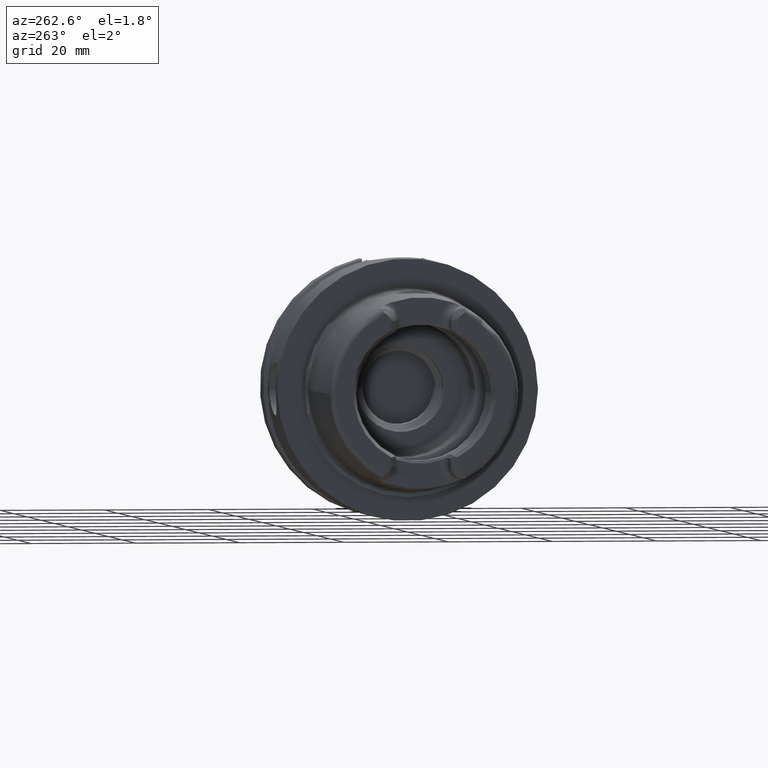
[diagram: clean part render]
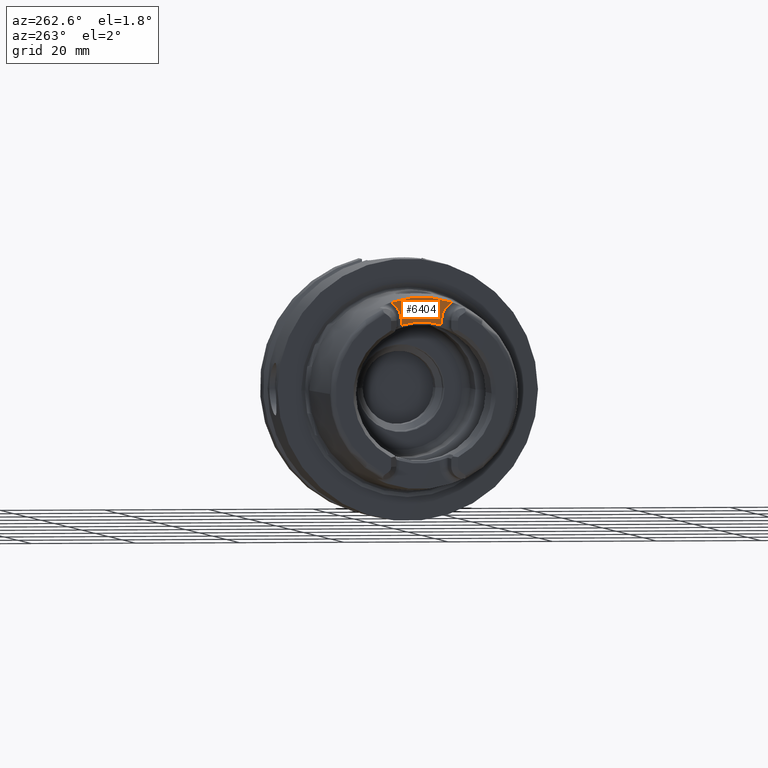
[diagram: same view with one face highlighted and labeled with its STEP entity id]
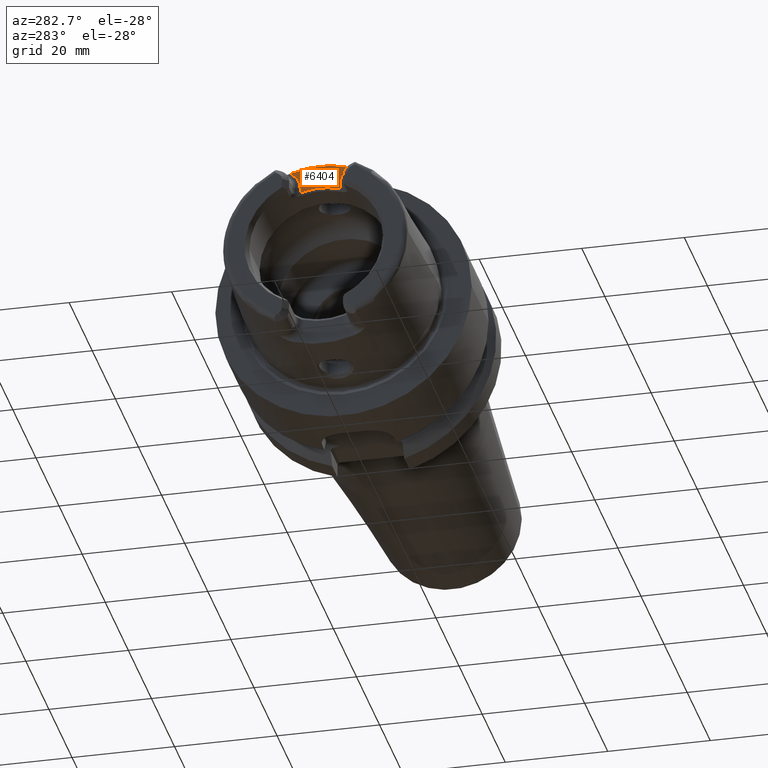
[diagram: same view with one face highlighted and labeled with its STEP entity id]
A machine part, auxiliary view. The second image highlights one B-rep face of the part: STEP entity #6404.
A second angle (auxiliary view) of the same face is appended — the face is thin or edge-on in the first view.
In plain terms, the highlighted planar face has unit normal (-1, 0, 0).
Its self-contained STEP definition (entity closure, byte-faithful):
#8=CARTESIAN_POINT('',(-2.03E1,0.E0,0.E0));
#9=DIRECTION('',(1.E0,0.E0,0.E0));
#10=DIRECTION('',(0.E0,3.252089046527E-1,9.456421988969E-1));
#11=AXIS2_PLACEMENT_3D('',#8,#9,#10);
#2606=DIRECTION('',(0.E0,1.605967836501E-11,1.E0));
#2607=VECTOR('',#2606,9.474000707151E-1);
#2608=CARTESIAN_POINT('',(-2.03E1,3.869999999992E0,1.293259992922E1));
#2609=LINE('',#2608,#2607);
#2610=CARTESIAN_POINT('',(-2.03E1,7.65E0,1.388E1));
#2611=DIRECTION('',(-1.E0,0.E0,0.E0));
#2612=DIRECTION('',(0.E0,-1.E0,0.E0));
#2613=AXIS2_PLACEMENT_3D('',#2610,#2611,#2612);
#2615=CARTESIAN_POINT('',(-2.03E1,-7.65E0,1.388E1));
#2616=DIRECTION('',(-1.E0,0.E0,0.E0));
#2617=DIRECTION('',(0.E0,4.547221569343E-1,8.906333476762E-1));
#2618=AXIS2_PLACEMENT_3D('',#2615,#2616,#2617);
#2620=DIRECTION('',(0.E0,2.687081703110E-11,-1.E0));
#2621=VECTOR('',#2620,9.474000706860E-1);
#2622=CARTESIAN_POINT('',(-2.03E1,-3.870000000016E0,1.387999999991E1));
#2623=LINE('',#2622,#2621);
#2624=CARTESIAN_POINT('',(-2.03E1,3.869999999992E0,1.293259992922E1));
#2625=CARTESIAN_POINT('',(-2.03E1,3.367341739340E0,1.308906659587E1));
#2626=CARTESIAN_POINT('',(-2.03E1,2.351605461968E0,1.333894307947E1));
#2627=CARTESIAN_POINT('',(-2.03E1,7.869237642455E-1,1.352896153447E1));
#2628=CARTESIAN_POINT('',(-2.03E1,-7.869237642206E-1,1.352896153447E1));
#2629=CARTESIAN_POINT('',(-2.03E1,-2.351605461924E0,1.333894307948E1));
#2630=CARTESIAN_POINT('',(-2.03E1,-3.367341739321E0,1.308906659588E1));
#2631=CARTESIAN_POINT('',(-2.03E1,-3.869999999991E0,1.293259992922E1));
#2782=CARTESIAN_POINT('',(-2.03E1,3.87E0,1.388E1));
#2784=VERTEX_POINT('',#2782);
#2786=CARTESIAN_POINT('',(-2.03E1,-3.87E0,1.388E1));
#2788=VERTEX_POINT('',#2786);
#2790=CARTESIAN_POINT('',(-2.03E1,5.931150246788E0,1.724659405422E1));
#2791=VERTEX_POINT('',#2790);
#2796=CARTESIAN_POINT('',(-2.03E1,-5.931150246788E0,1.724659405422E1));
#2797=VERTEX_POINT('',#2796);
#2829=CARTESIAN_POINT('',(-2.03E1,3.869999999992E0,1.293259992922E1));
#2830=VERTEX_POINT('',#2829);
#2831=CARTESIAN_POINT('',(-2.03E1,-3.869999999991E0,1.293259992922E1));
#2832=VERTEX_POINT('',#2831);
#6389=CARTESIAN_POINT('',(-2.03E1,0.E0,0.E0));
#6390=DIRECTION('',(-1.E0,0.E0,0.E0));
#6391=DIRECTION('',(0.E0,0.E0,1.E0));
#6392=AXIS2_PLACEMENT_3D('',#6389,#6390,#6391);
#6393=PLANE('',#6392);
#6394=ORIENTED_EDGE('',*,*,#3469,.T.);
#6395=ORIENTED_EDGE('',*,*,#3487,.T.);
#6396=ORIENTED_EDGE('',*,*,#3249,.T.);
#6398=ORIENTED_EDGE('',*,*,#6397,.T.);
#6400=ORIENTED_EDGE('',*,*,#6399,.T.);
#6401=ORIENTED_EDGE('',*,*,#6380,.F.);
#6402=EDGE_LOOP('',(#6394,#6395,#6396,#6398,#6400,#6401));
#6403=FACE_OUTER_BOUND('',#6402,.F.);
#6404=ADVANCED_FACE('',(#6403),#6393,.T.);
#12=CIRCLE('',#11,1.823797E1);
#2614=CIRCLE('',#2613,3.78E0);
#2619=CIRCLE('',#2618,3.78E0);
#2632=B_SPLINE_CURVE_WITH_KNOTS('',3,(#2624,#2625,#2626,#2627,#2628,#2629,#2630,
#2631),.UNSPECIFIED.,.F.,.F.,(4,1,1,1,1,4),(0.E0,2.E-1,4.E-1,6.E-1,8.E-1,1.E0),
.UNSPECIFIED.);
#3249=EDGE_CURVE('',#2791,#2797,#12,.T.);
#3469=EDGE_CURVE('',#2830,#2784,#2609,.T.);
#3487=EDGE_CURVE('',#2784,#2791,#2614,.T.);
#6380=EDGE_CURVE('',#2830,#2832,#2632,.T.);
#6397=EDGE_CURVE('',#2797,#2788,#2619,.T.);
#6399=EDGE_CURVE('',#2788,#2832,#2623,.T.);